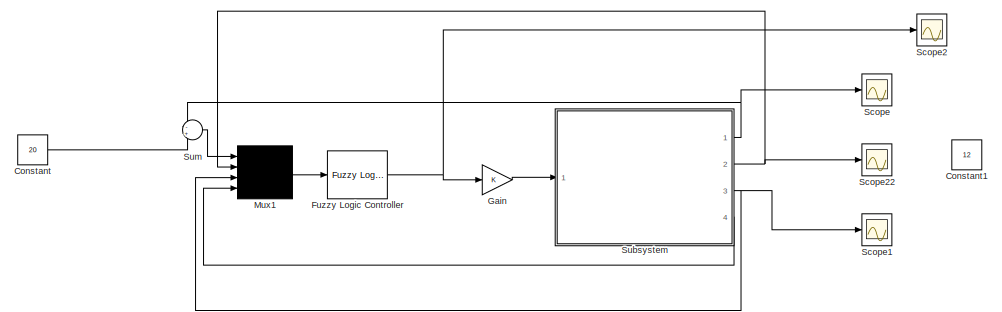
[diagram: root canvas - part 1/3, top center region]
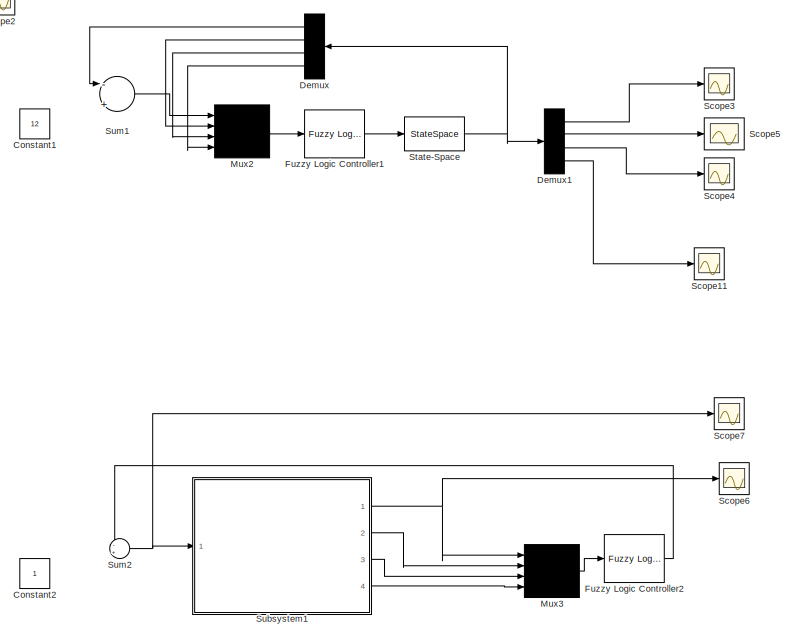
[diagram: root canvas - part 2/3, middle right region]
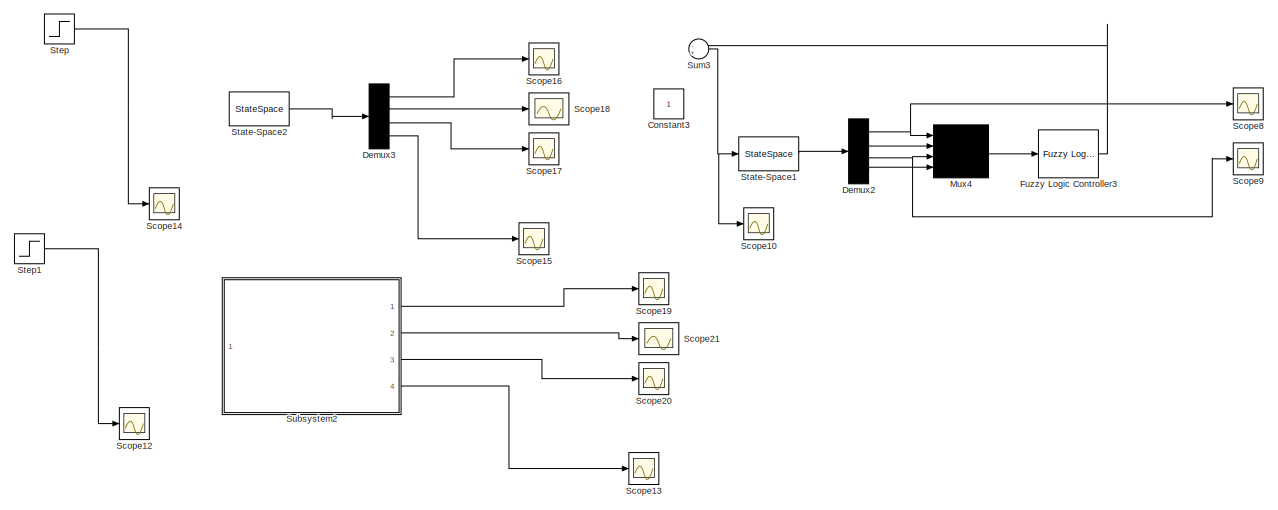
[diagram: root canvas - part 3/3, bottom left region]
MODEL slx_61dc9a75f006
KIND model
BLOCK [Constant] Constant
  Value = 20
BLOCK [Constant] Constant1
  Value = 12
BLOCK [Constant] Constant2
BLOCK [Constant] Constant3
BLOCK [Demux] Demux
  DisplayOption = bar
  Ports = [1, 4]
BLOCK [Demux] Demux1
  DisplayOption = bar
  Ports = [1, 4]
BLOCK [Demux] Demux2
  DisplayOption = bar
  Ports = [1, 4]
BLOCK [Demux] Demux3
  DisplayOption = bar
  Ports = [1, 4]
BLOCK [Reference] Fuzzy Logic Controller  REF=fuzblock/Fuzzy Logic   (lib defined in mdl_858b3b3e7478)
Controller
  Ports = [1, 1]
  SourceBlock = fuzblock/Fuzzy Logic \nController
  SourceType = FIS
  fis = cranemajo
BLOCK [Reference] Fuzzy Logic Controller1  REF=fuzblock/Fuzzy Logic   (lib defined in mdl_858b3b3e7478)
Controller
  Ports = [1, 1]
  SourceBlock = fuzblock/Fuzzy Logic \nController
  SourceType = FIS
  fis = crane
BLOCK [Reference] Fuzzy Logic Controller2  REF=fuzblock/Fuzzy Logic   (lib defined in mdl_858b3b3e7478)
Controller
  Ports = [1, 1]
  SourceBlock = fuzblock/Fuzzy Logic \nController
  SourceType = FIS
  fis = crane
BLOCK [Reference] Fuzzy Logic Controller3  REF=fuzblock/Fuzzy Logic   (lib defined in mdl_858b3b3e7478)
Controller
  Ports = [1, 1]
  SourceBlock = fuzblock/Fuzzy Logic \nController
  SourceType = FIS
  fis = crane
BLOCK [Gain] Gain
  OutDataTypeStr = Inherit: Inherit via internal rule
  ParamDataTypeStr = Inherit: Inherit via internal rule
  SaturateOnIntegerOverflow = off
BLOCK [Mux] Mux1
  DisplayOption = bar
  Ports = [4, 1]
BLOCK [Mux] Mux2
  DisplayOption = bar
  Ports = [4, 1]
BLOCK [Mux] Mux3
  DisplayOption = bar
  Ports = [4, 1]
BLOCK [Mux] Mux4
  DisplayOption = bar
  Ports = [4, 1]
BLOCK [Scope] Scope
  Floating = off
  LimitDataPoints = off
  NumInputPorts = 1
  Ports = [1]
  ShowLegends = off
  TimeRange = 1000
  YMax = 21.16778149386845
  YMin = 19.3561872909699
  ZoomMode = yonly
BLOCK [Scope] Scope1
  Floating = off
  NumInputPorts = 1
  Ports = [1]
  SaveName = ScopeData1
  ShowLegends = off
  YMax = 0.0004
  YMin = -0.001
BLOCK [Scope] Scope10
  Floating = off
  NumInputPorts = 1
  Ports = [1]
  SaveName = ScopeData10
  ShowLegends = off
  YMax = 1
  YMin = -0.2
BLOCK [Scope] Scope11
  Floating = off
  NumInputPorts = 1
  Ports = [1]
  SaveName = ScopeData11
  ShowLegends = off
  YMax = 0.0004
  YMin = -0.0004
BLOCK [Scope] Scope12
  Floating = off
  NumInputPorts = 1
  Ports = [1]
  SaveName = ScopeData12
  ShowLegends = off
  YMax = 2
  YMin = -0
BLOCK [Scope] Scope13
  Floating = off
  NumInputPorts = 1
  Ports = [1]
  SaveName = ScopeData13
  ShowLegends = off
  YMax = 0.0004
  YMin = -0.0004
BLOCK [Scope] Scope14
  Floating = off
  NumInputPorts = 1
  Ports = [1]
  SaveName = ScopeData14
  ShowLegends = off
  YMax = 2
  YMin = -0
BLOCK [Scope] Scope15
  Floating = off
  NumInputPorts = 1
  Ports = [1]
  SaveName = ScopeData15
  ShowLegends = off
  YMax = 0.0004
  YMin = -0.0004
BLOCK [Scope] Scope16
  Floating = off
  NumInputPorts = 1
  Ports = [1]
  SaveName = ScopeData16
  ShowLegends = off
  ZoomMode = yonly
BLOCK [Scope] Scope17
  Floating = off
  NumInputPorts = 1
  Ports = [1]
  SaveName = ScopeData17
  ShowLegends = off
BLOCK [Scope] Scope18
  Floating = off
  NumInputPorts = 1
  Ports = [1]
  SaveName = ScopeData18
  ShowLegends = off
  ZoomMode = yonly
BLOCK [Scope] Scope19
  Floating = off
  NumInputPorts = 1
  Ports = [1]
  SaveName = ScopeData19
  ShowLegends = off
  ZoomMode = yonly
BLOCK [Scope] Scope2
  Floating = off
  NumInputPorts = 1
  Ports = [1]
  SaveName = ScopeData2
  ShowLegends = off
  YMax = 18
  YMin = 0
BLOCK [Scope] Scope20
  Floating = off
  NumInputPorts = 1
  Ports = [1]
  SaveName = ScopeData20
  ShowLegends = off
BLOCK [Scope] Scope21
  Floating = off
  NumInputPorts = 1
  Ports = [1]
  SaveName = ScopeData21
  ShowLegends = off
  ZoomMode = yonly
BLOCK [Scope] Scope22
  Floating = off
  NumInputPorts = 1
  Ports = [1]
  SaveName = ScopeData22
  ShowLegends = off
  TimeRange = 150
  YMax = 25
  YMin = 0
  ZoomMode = xonly
BLOCK [Scope] Scope3
  Floating = off
  NumInputPorts = 1
  Ports = [1]
  SaveName = ScopeData3
  ShowLegends = off
  ZoomMode = yonly
BLOCK [Scope] Scope4
  Floating = off
  NumInputPorts = 1
  Ports = [1]
  SaveName = ScopeData4
  ShowLegends = off
BLOCK [Scope] Scope5
  Floating = off
  NumInputPorts = 1
  Ports = [1]
  SaveName = ScopeData5
  ShowLegends = off
  ZoomMode = yonly
BLOCK [Scope] Scope6
  Floating = off
  NumInputPorts = 1
  Ports = [1]
  SaveName = ScopeData6
  ShowLegends = off
  YMax = 2
  YMin = -0
BLOCK [Scope] Scope7
  Floating = off
  NumInputPorts = 1
  Ports = [1]
  SaveName = ScopeData7
  ShowLegends = off
  YMax = 2
  YMin = -0
BLOCK [Scope] Scope8
  Floating = off
  NumInputPorts = 1
  Ports = [1]
  SaveName = ScopeData8
  ShowLegends = off
  YMax = 2
  YMin = -0
BLOCK [Scope] Scope9
  Floating = off
  NumInputPorts = 1
  Ports = [1]
  SaveName = ScopeData9
  ShowLegends = off
  YMax = 2
  YMin = -0
BLOCK [StateSpace] State-Space
  A = [0 1 0 0;0 0 Mg/Mk/Z 0;0 0 0 1; 0 0 -(1 + Mg/Mk)/Z 0 ]
  B = [0;1;0;-1]./Mk
  C = [1 0 0 0;0 1 0 0;0 0 1 0;0 0 0 1]
  D = [0;0;0;0]
  Ports = [1, 1]
  X0 = 0
BLOCK [StateSpace] State-Space1
  A = [0 1 0 0;0 0 Mg/Mk/Z 0;0 0 0 1; 0 0 -(1 + Mg/Mk)/Z 0 ]
  B = [0;1;0;-1]./Mk
  C = [1 0 0 0;0 1 0 0;0 0 1 0;0 0 0 1]
  D = [0;0;0;0]
  Ports = [1, 1]
  X0 = 0
BLOCK [StateSpace] State-Space2
  A = [0 1 0 0;0 0 Mg/Mk/Z 0;0 0 0 1; 0 0 -(1 + Mg/Mk)/Z 0 ]
  B = [0;1;0;-1]./Mk
  C = [1 0 0 0;0 1 0 0;0 0 1 0;0 0 0 1]
  D = [0;0;0;0]
  Ports = [1, 1]
  X0 = 0
BLOCK [Step] Step
  After = 0
  Before = 10
  SampleTime = 0
  Time = 10
BLOCK [Step] Step1
  After = 0
  Before = 10
  SampleTime = 0
  Time = 10
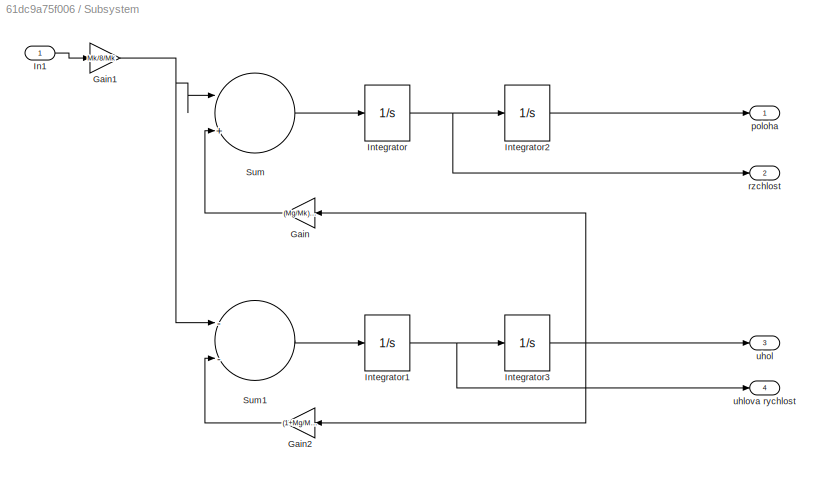
BLOCK [SubSystem] Subsystem
  Ports = [1, 4]
  RequestExecContextInheritance = off
BLOCK [Gain] Subsystem/Gain
  Gain = (Mg/Mk)/Z
  OutDataTypeStr = Inherit: Inherit via internal rule
  ParamDataTypeStr = Inherit: Inherit via internal rule
  SaturateOnIntegerOverflow = off
BLOCK [Gain] Subsystem/Gain1
  Gain = Mk/8/Mk
  OutDataTypeStr = Inherit: Inherit via internal rule
  ParamDataTypeStr = Inherit: Inherit via internal rule
  SaturateOnIntegerOverflow = off
BLOCK [Gain] Subsystem/Gain2
  Gain = (1+Mg/Mk)/Z
  OutDataTypeStr = Inherit: Inherit via internal rule
  ParamDataTypeStr = Inherit: Inherit via internal rule
  SaturateOnIntegerOverflow = off
BLOCK [Inport] Subsystem/In1
  IconDisplay = Port number
BLOCK [Integrator] Subsystem/Integrator
  Ports = [1, 1]
BLOCK [Integrator] Subsystem/Integrator1
  Ports = [1, 1]
BLOCK [Integrator] Subsystem/Integrator2
  Ports = [1, 1]
BLOCK [Integrator] Subsystem/Integrator3
  Ports = [1, 1]
BLOCK [Sum] Subsystem/Sum
  InputSameDT = off
  Inputs = |++
  OutDataTypeStr = Inherit: Inherit via internal rule
  Ports = [2, 1]
  SaturateOnIntegerOverflow = off
BLOCK [Sum] Subsystem/Sum1
  InputSameDT = off
  Inputs = --
  OutDataTypeStr = Inherit: Inherit via internal rule
  Ports = [2, 1]
  SaturateOnIntegerOverflow = off
BLOCK [Outport] Subsystem/poloha 
  IconDisplay = Port number
BLOCK [Outport] Subsystem/rzchlost 
  IconDisplay = Port number
  Port = 2
BLOCK [Outport] Subsystem/uhlova rychlost 
  IconDisplay = Port number
  Port = 4
BLOCK [Outport] Subsystem/uhol 
  IconDisplay = Port number
  Port = 3
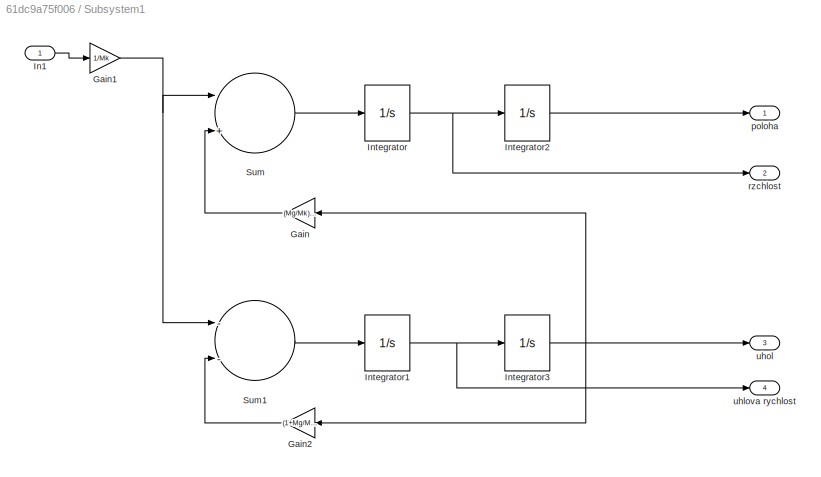
BLOCK [SubSystem] Subsystem1
  Ports = [1, 4]
  RequestExecContextInheritance = off
BLOCK [Gain] Subsystem1/Gain
  Gain = (Mg/Mk)/Z
  OutDataTypeStr = Inherit: Inherit via internal rule
  ParamDataTypeStr = Inherit: Inherit via internal rule
  SaturateOnIntegerOverflow = off
BLOCK [Gain] Subsystem1/Gain1
  Gain = 1/Mk
  OutDataTypeStr = Inherit: Inherit via internal rule
  ParamDataTypeStr = Inherit: Inherit via internal rule
  SaturateOnIntegerOverflow = off
BLOCK [Gain] Subsystem1/Gain2
  Gain = (1+Mg/Mk)/Z
  OutDataTypeStr = Inherit: Inherit via internal rule
  ParamDataTypeStr = Inherit: Inherit via internal rule
  SaturateOnIntegerOverflow = off
BLOCK [Inport] Subsystem1/In1
  IconDisplay = Port number
BLOCK [Integrator] Subsystem1/Integrator
  Ports = [1, 1]
BLOCK [Integrator] Subsystem1/Integrator1
  Ports = [1, 1]
BLOCK [Integrator] Subsystem1/Integrator2
  Ports = [1, 1]
BLOCK [Integrator] Subsystem1/Integrator3
  Ports = [1, 1]
BLOCK [Sum] Subsystem1/Sum
  InputSameDT = off
  Inputs = |++
  OutDataTypeStr = Inherit: Inherit via internal rule
  Ports = [2, 1]
  SaturateOnIntegerOverflow = off
BLOCK [Sum] Subsystem1/Sum1
  InputSameDT = off
  Inputs = --
  OutDataTypeStr = Inherit: Inherit via internal rule
  Ports = [2, 1]
  SaturateOnIntegerOverflow = off
BLOCK [Outport] Subsystem1/poloha 
  IconDisplay = Port number
BLOCK [Outport] Subsystem1/rzchlost 
  IconDisplay = Port number
  Port = 2
BLOCK [Outport] Subsystem1/uhlova rychlost 
  IconDisplay = Port number
  Port = 4
BLOCK [Outport] Subsystem1/uhol 
  IconDisplay = Port number
  Port = 3
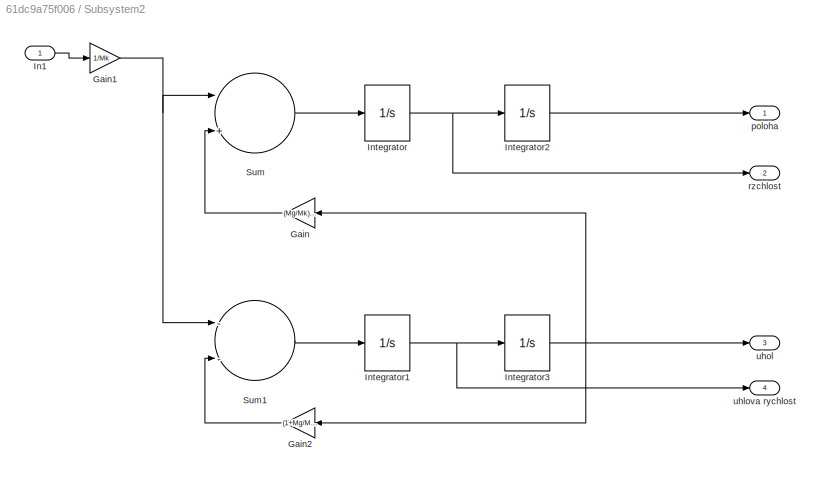
BLOCK [SubSystem] Subsystem2
  Ports = [1, 4]
  RequestExecContextInheritance = off
BLOCK [Gain] Subsystem2/Gain
  Gain = (Mg/Mk)/Z
  OutDataTypeStr = Inherit: Inherit via internal rule
  ParamDataTypeStr = Inherit: Inherit via internal rule
  SaturateOnIntegerOverflow = off
BLOCK [Gain] Subsystem2/Gain1
  Gain = 1/Mk
  OutDataTypeStr = Inherit: Inherit via internal rule
  ParamDataTypeStr = Inherit: Inherit via internal rule
  SaturateOnIntegerOverflow = off
BLOCK [Gain] Subsystem2/Gain2
  Gain = (1+Mg/Mk)/Z
  OutDataTypeStr = Inherit: Inherit via internal rule
  ParamDataTypeStr = Inherit: Inherit via internal rule
  SaturateOnIntegerOverflow = off
BLOCK [Inport] Subsystem2/In1
  IconDisplay = Port number
BLOCK [Integrator] Subsystem2/Integrator
  Ports = [1, 1]
BLOCK [Integrator] Subsystem2/Integrator1
  Ports = [1, 1]
BLOCK [Integrator] Subsystem2/Integrator2
  Ports = [1, 1]
BLOCK [Integrator] Subsystem2/Integrator3
  Ports = [1, 1]
BLOCK [Sum] Subsystem2/Sum
  InputSameDT = off
  Inputs = |++
  OutDataTypeStr = Inherit: Inherit via internal rule
  Ports = [2, 1]
  SaturateOnIntegerOverflow = off
BLOCK [Sum] Subsystem2/Sum1
  InputSameDT = off
  Inputs = --
  OutDataTypeStr = Inherit: Inherit via internal rule
  Ports = [2, 1]
  SaturateOnIntegerOverflow = off
BLOCK [Outport] Subsystem2/poloha 
  IconDisplay = Port number
BLOCK [Outport] Subsystem2/rzchlost 
  IconDisplay = Port number
  Port = 2
BLOCK [Outport] Subsystem2/uhlova rychlost 
  IconDisplay = Port number
  Port = 4
BLOCK [Outport] Subsystem2/uhol 
  IconDisplay = Port number
  Port = 3
BLOCK [Sum] Sum
  IconShape = round
  InputSameDT = off
  Inputs = -+
  OutDataTypeStr = Inherit: Inherit via internal rule
  Ports = [2, 1]
  SaturateOnIntegerOverflow = off
BLOCK [Sum] Sum1
  InputSameDT = off
  Inputs = -+
  OutDataTypeStr = Inherit: Inherit via internal rule
  Ports = [2, 1]
  SaturateOnIntegerOverflow = off
BLOCK [Sum] Sum2
  IconShape = round
  InputSameDT = off
  Inputs = -+
  OutDataTypeStr = Inherit: Inherit via internal rule
  Ports = [2, 1]
  SaturateOnIntegerOverflow = off
BLOCK [Sum] Sum3
  IconShape = round
  InputSameDT = off
  Inputs = -+
  OutDataTypeStr = Inherit: Inherit via internal rule
  Ports = [2, 1]
  SaturateOnIntegerOverflow = off
LINE Constant:1 -> Sum:2
LINE Demux1:1 -> Scope3:1
LINE Demux1:2 -> Scope5:1
LINE Demux1:3 -> Scope4:1
LINE Demux1:4 -> Scope11:1
NET Demux2:1 -> Mux4:1, Scope8:1
LINE Demux2:2 -> Mux4:2
NET Demux2:3 -> Mux4:3, Scope9:1
LINE Demux2:4 -> Mux4:4
LINE Demux3:1 -> Scope16:1
LINE Demux3:2 -> Scope18:1
LINE Demux3:3 -> Scope17:1
LINE Demux3:4 -> Scope15:1
LINE Demux:1 -> Sum1:1
LINE Demux:2 -> Mux2:2
LINE Demux:3 -> Mux2:3
LINE Demux:4 -> Mux2:4
LINE Fuzzy Logic Controller1:1 -> State-Space:1
LINE Fuzzy Logic Controller2:1 -> Sum2:1
LINE Fuzzy Logic Controller3:1 -> Sum3:1
NET Fuzzy Logic Controller:1 -> Gain:1, Scope2:1
LINE Gain:1 -> Subsystem:1
LINE Mux1:1 -> Fuzzy Logic Controller:1
LINE Mux2:1 -> Fuzzy Logic Controller1:1
LINE Mux3:1 -> Fuzzy Logic Controller2:1
LINE Mux4:1 -> Fuzzy Logic Controller3:1
LINE State-Space1:1 -> Demux2:1
LINE State-Space2:1 -> Demux3:1
NET State-Space:1 -> Demux1:1, Demux:1
LINE Step1:1 -> Scope12:1
LINE Step:1 -> Scope14:1
NET Subsystem/Gain1:1 -> Subsystem/Sum1:1, Subsystem/Sum:1
LINE Subsystem/Gain2:1 -> Subsystem/Sum1:2
LINE Subsystem/Gain:1 -> Subsystem/Sum:2
LINE Subsystem/In1:1 -> Subsystem/Gain1:1
NET Subsystem/Integrator1:1 -> Subsystem/Integrator3:1, Subsystem/uhlova rychlost :1
LINE Subsystem/Integrator2:1 -> Subsystem/poloha :1
NET Subsystem/Integrator3:1 -> Subsystem/Gain2:1, Subsystem/Gain:1, Subsystem/uhol :1
NET Subsystem/Integrator:1 -> Subsystem/Integrator2:1, Subsystem/rzchlost :1
LINE Subsystem/Sum1:1 -> Subsystem/Integrator1:1
LINE Subsystem/Sum:1 -> Subsystem/Integrator:1
NET Subsystem1/Gain1:1 -> Subsystem1/Sum1:1, Subsystem1/Sum:1
LINE Subsystem1/Gain2:1 -> Subsystem1/Sum1:2
LINE Subsystem1/Gain:1 -> Subsystem1/Sum:2
LINE Subsystem1/In1:1 -> Subsystem1/Gain1:1
NET Subsystem1/Integrator1:1 -> Subsystem1/Integrator3:1, Subsystem1/uhlova rychlost :1
LINE Subsystem1/Integrator2:1 -> Subsystem1/poloha :1
NET Subsystem1/Integrator3:1 -> Subsystem1/Gain2:1, Subsystem1/Gain:1, Subsystem1/uhol :1
NET Subsystem1/Integrator:1 -> Subsystem1/Integrator2:1, Subsystem1/rzchlost :1
LINE Subsystem1/Sum1:1 -> Subsystem1/Integrator1:1
LINE Subsystem1/Sum:1 -> Subsystem1/Integrator:1
NET Subsystem1:1 -> Mux3:1, Scope6:1
LINE Subsystem1:2 -> Mux3:2
LINE Subsystem1:3 -> Mux3:3
LINE Subsystem1:4 -> Mux3:4
NET Subsystem2/Gain1:1 -> Subsystem2/Sum1:1, Subsystem2/Sum:1
LINE Subsystem2/Gain2:1 -> Subsystem2/Sum1:2
LINE Subsystem2/Gain:1 -> Subsystem2/Sum:2
LINE Subsystem2/In1:1 -> Subsystem2/Gain1:1
NET Subsystem2/Integrator1:1 -> Subsystem2/Integrator3:1, Subsystem2/uhlova rychlost :1
LINE Subsystem2/Integrator2:1 -> Subsystem2/poloha :1
NET Subsystem2/Integrator3:1 -> Subsystem2/Gain2:1, Subsystem2/Gain:1, Subsystem2/uhol :1
NET Subsystem2/Integrator:1 -> Subsystem2/Integrator2:1, Subsystem2/rzchlost :1
LINE Subsystem2/Sum1:1 -> Subsystem2/Integrator1:1
LINE Subsystem2/Sum:1 -> Subsystem2/Integrator:1
LINE Subsystem2:1 -> Scope19:1
LINE Subsystem2:2 -> Scope21:1
LINE Subsystem2:3 -> Scope20:1
LINE Subsystem2:4 -> Scope13:1
NET Subsystem:1 -> Scope:1, Sum:1
NET Subsystem:2 -> Mux1:2, Scope22:1
NET Subsystem:3 -> Mux1:3, Scope1:1
LINE Subsystem:4 -> Mux1:4
LINE Sum1:1 -> Mux2:1
NET Sum2:1 -> Scope7:1, Subsystem1:1
NET Sum3:1 -> Scope10:1, State-Space1:1
LINE Sum:1 -> Mux1:1
note: NET lines group one-source signal fan-out (src -> all destinations, sorted); 1:1 wires keep LINE
